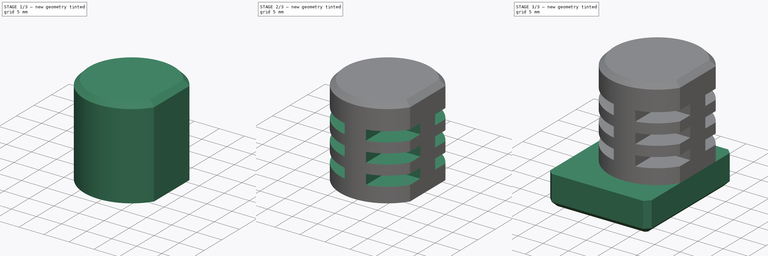
[diagram: build sequence overview — one tinted view per stage of 3, left to right]
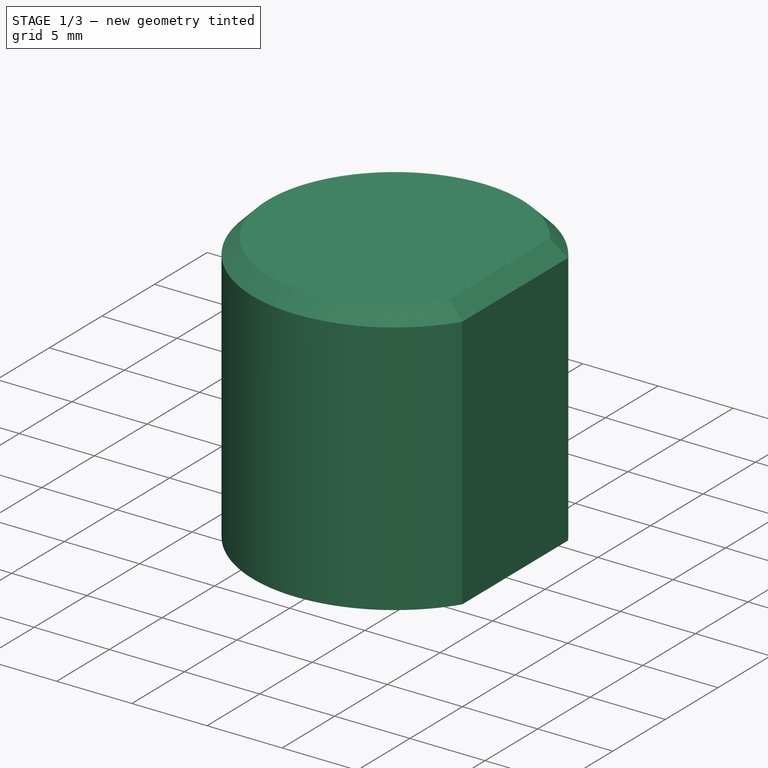
[diagram: stage 1 of 3 — iso view after this stage's code; geometry added in this stage tinted green]
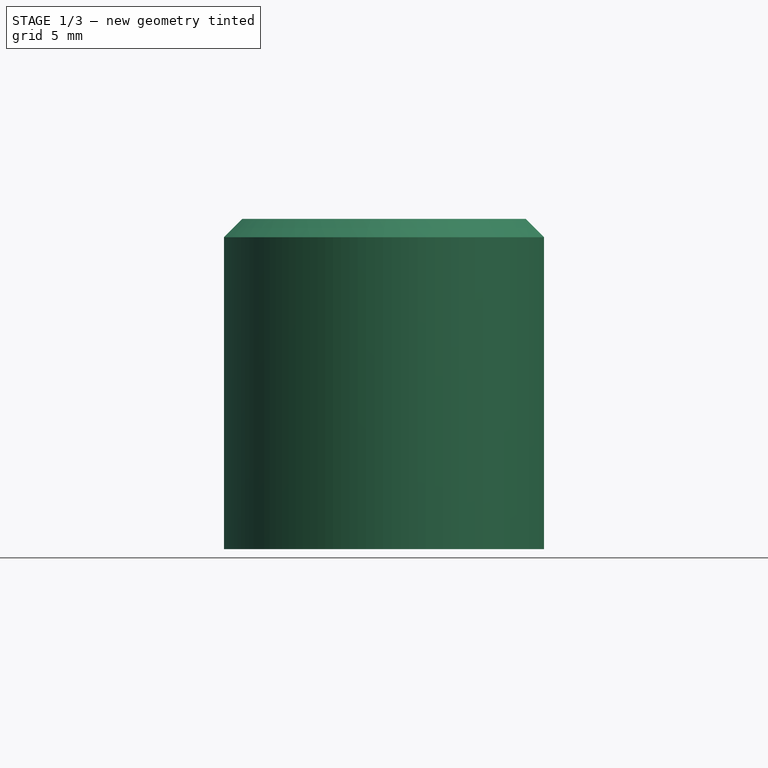
[diagram: stage 1 of 3 — front view after this stage's code; geometry added in this stage tinted green]
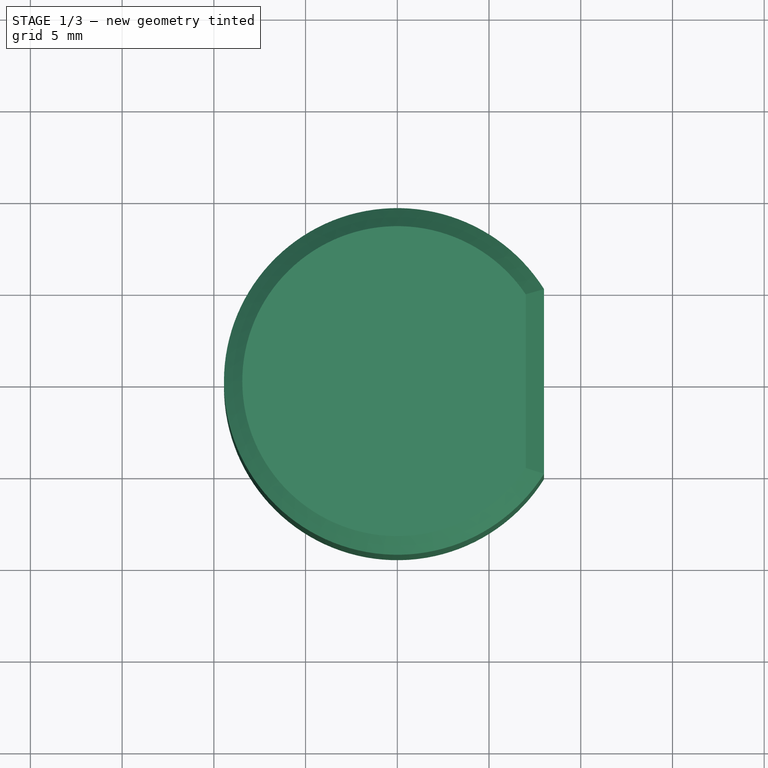
[diagram: stage 1 of 3 — top view after this stage's code; geometry added in this stage tinted green]
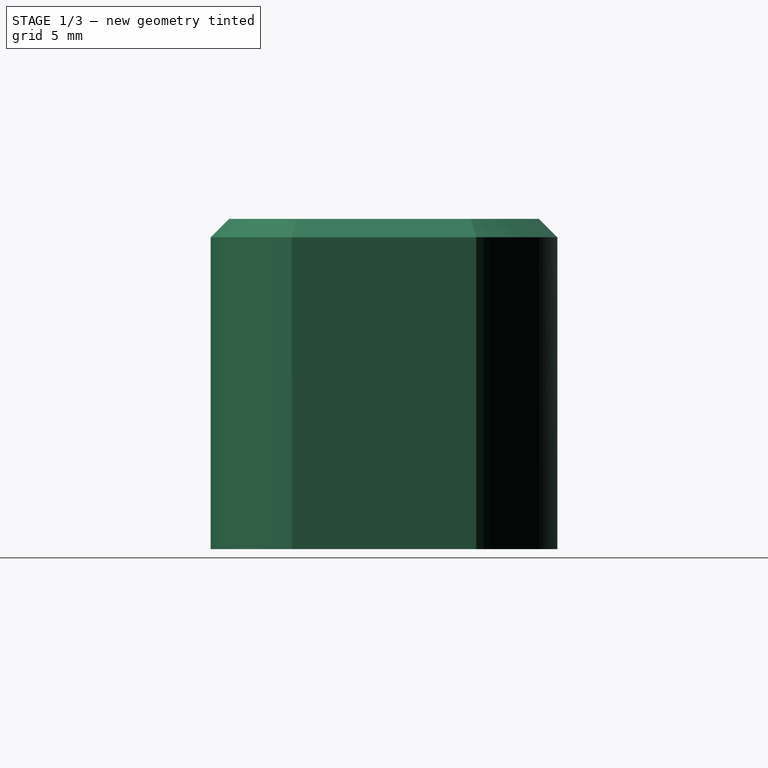
[diagram: stage 1 of 3 — right view after this stage's code; geometry added in this stage tinted green]
FCSTD DOCUMENT  (FreeCAD 1.1R38843 (Git))
Label: another dog
License: All rights reserved
LicenseURL: http://en.wikipedia.org/wiki/All_rights_reserved
objects: Sketcher::SketchObject×3, PartDesign::Pad×2, PartDesign::Chamfer×2, App::FeaturePython×1, PartDesign::Pocket×1, PartDesign::LinearPattern×1, PartDesign::Body×1
note: 24 computed .brp shape members not serialized (recipe doc carries the construction recipe); baked Part::Feature solids carry a one-line shape summary decoded from their .brp

FEATURE [Sketcher::SketchObject] Sketch003
  ArcFitTolerance = 0
  AttachmentSupport = -> [XY_Plane001]
  FullyConstrained = true
  MakeInternals = false
  MapMode = 5
  expr: Constraints[1] = dd.DogDiameter
  expr: Constraints[5] = dd.DogFlatDistance
  sketch-geometry (2):
    g0: ArcOfCircle CenterX=0 CenterY=0 CenterZ=0 NormalX=0 NormalY=0 NormalZ=1 AngleXU=0 Radius=9.45 StartAngle=0.561306 EndAngle=5.72188
    g1: LineSegment StartX=8 StartY=5.03016 StartZ=0 EndX=8 EndY=-5.03016 EndZ=0
  constraints (6):
    c: Coincident(g0,g-1)
    c: Diameter(g0) = 18.9
    c: Vertical(g1)
    c: Coincident(g0,g1)
    c: Coincident(g0,g1)
    c: DistanceX(g0,g0) = 8
FEATURE [PartDesign::Pad] Pad002  label="basic plug"
  Direction = (0,0,1)
  Length = 18
  Length2 = 10
  Profile = -> Sketch003
  ReferenceAxis = -> Sketch003 [N_Axis]
  Refine = true
  Suppressed = false
  Type = 0
  expr: Length = dd.DogDepth
FEATURE [App::FeaturePython] dd  label="Customization"  # WARN: FeaturePython — macro-defined, semantics opaque (R4)
  DogDepth = 18
  DogDiameter = 18.9
  DogFlatDistance = 8
  DogHeight = 6
  DogSideA = 10
  DogSideB = 12
  DogSideC = 14
  DynamicData = Created with DynamicData (v2.68) workbench. | This is a simple container object built | for holding custom properties.
FEATURE [Sketcher::SketchObject] Sketch004
  ArcFitTolerance = 1e-06
  AttachmentOffset = pos=(0,0,3) rot=(0,0,1;0rad)
  AttachmentSupport = -> [XY_Plane001]
  FullyConstrained = true
  MakeInternals = false
  MapMode = 5
  Placement = pos=(0,0,3) rot=(0,0,1;0rad)
  sketch-geometry (20):
    g0: LineSegment [constr] StartX=-2.12132 StartY=2.12132 StartZ=0 EndX=-2.12132 EndY=-2.12132 EndZ=0
    g1: LineSegment [constr] StartX=-2.12132 StartY=-2.12132 StartZ=0 EndX=2.12132 EndY=-2.12132 EndZ=0
    g2: LineSegment [constr] StartX=2.12132 StartY=-2.12132 StartZ=0 EndX=2.12132 EndY=2.12132 EndZ=0
    g3: LineSegment [constr] StartX=2.12132 StartY=2.12132 StartZ=0 EndX=-2.12132 EndY=2.12132 EndZ=0
    g4: LineSegment StartX=2.12132 StartY=-2.12132 StartZ=0 EndX=2.12132 EndY=-22.1213 EndZ=0
    g5: LineSegment StartX=2.12132 StartY=-22.1213 StartZ=0 EndX=22.1213 EndY=-22.1213 EndZ=0
    g6: LineSegment StartX=22.1213 StartY=-22.1213 StartZ=0 EndX=22.1213 EndY=-2.12132 EndZ=0
    g7: LineSegment StartX=22.1213 StartY=-2.12132 StartZ=0 EndX=2.12132 EndY=-2.12132 EndZ=0
    g8: LineSegment StartX=2.12132 StartY=2.12132 StartZ=0 EndX=22.1213 EndY=2.12132 EndZ=0
    g9: LineSegment StartX=22.1213 StartY=2.12132 StartZ=0 EndX=22.1213 EndY=22.1213 EndZ=0
    g10: LineSegment StartX=22.1213 StartY=22.1213 StartZ=0 EndX=2.12132 EndY=22.1213 EndZ=0
    g11: LineSegment StartX=2.12132 StartY=22.1213 StartZ=0 EndX=2.12132 EndY=2.12132 EndZ=0
    g12: LineSegment StartX=-2.12132 StartY=2.12132 StartZ=0 EndX=-2.12132 EndY=22.1213 EndZ=0
    g13: LineSegment StartX=-2.12132 StartY=22.1213 StartZ=0 EndX=-22.1213 EndY=22.1213 EndZ=0
    g14: LineSegment StartX=-22.1213 StartY=22.1213 StartZ=0 EndX=-22.1213 EndY=2.12132 EndZ=0
    g15: LineSegment StartX=-22.1213 StartY=2.12132 StartZ=0 EndX=-2.12132 EndY=2.12132 EndZ=0
    g16: LineSegment StartX=-2.12132 StartY=-2.12132 StartZ=0 EndX=-22.1213 EndY=-2.12132 EndZ=0
    g17: LineSegment StartX=-22.1213 StartY=-2.12132 StartZ=0 EndX=-22.1213 EndY=-22.1213 EndZ=0
    g18: LineSegment StartX=-22.1213 StartY=-22.1213 StartZ=0 EndX=-2.12132 EndY=-22.1213 EndZ=0
    g19: LineSegment StartX=-2.12132 StartY=-22.1213 StartZ=0 EndX=-2.12132 EndY=-2.12132 EndZ=0
  constraints (55):
    c: Coincident(g0,g1)
    c: Coincident(g1,g2)
    c: Coincident(g2,g3)
    c: Coincident(g3,g0)
    c: Vertical(g0)
    c: Vertical(g2)
    c: Horizontal(g1)
    c: Horizontal(g3)
    c: Equal(g1,g2)
    c: Symmetric(g0,g2,g-1)
    c: Coincident(g4,g5)
    c: Coincident(g5,g6)
    c: Coincident(g6,g7)
    c: Coincident(g7,g4)
    c: Vertical(g4)
    c: Vertical(g6)
    c: Horizontal(g5)
    c: Horizontal(g7)
    c: Coincident(g4,g1)
    c: Coincident(g8,g9)
    c: Coincident(g9,g10)
    c: Coincident(g10,g11)
    c: Coincident(g11,g8)
    c: Horizontal(g8)
    c: Horizontal(g10)
    c: Vertical(g9)
    c: Vertical(g11)
    c: Coincident(g8,g2)
    c: Coincident(g12,g13)
    c: Coincident(g13,g14)
    c: Coincident(g14,g15)
    c: Coincident(g15,g12)
    c: Vertical(g12)
    c: Vertical(g14)
    c: Horizontal(g13)
    c: Horizontal(g15)
    c: Coincident(g12,g0)
    c: Coincident(g16,g17)
    c: Coincident(g17,g18)
    c: Coincident(g18,g19)
    c: Coincident(g19,g16)
    c: Horizontal(g16)
    c: Horizontal(g18)
    c: Vertical(g17)
    c: Vertical(g19)
    c: Coincident(g16,g0)
    c: Equal(g10,g9)
    c: Equal(g12,g13)
    c: Equal(g16,g19)
    c: Equal(g4,g7)
    c: Equal(g7,g8)
    c: Equal(g8,g15)
    c: Equal(g16,g15)
    c: Distance(g-1,g1) = 3
    c: DistanceX(g7,g7) = 20
FEATURE [PartDesign::Chamfer] Chamfer001
  Angle = 45
  Base = -> Pad002 [Face4]
  BaseFeature = -> Pad002
  ChamferType = 0
  FlipDirection = false
  Refine = true
  Size = 1
  Size2 = 1
  SupportTransform = false
  Suppressed = false
  UseAllEdges = false
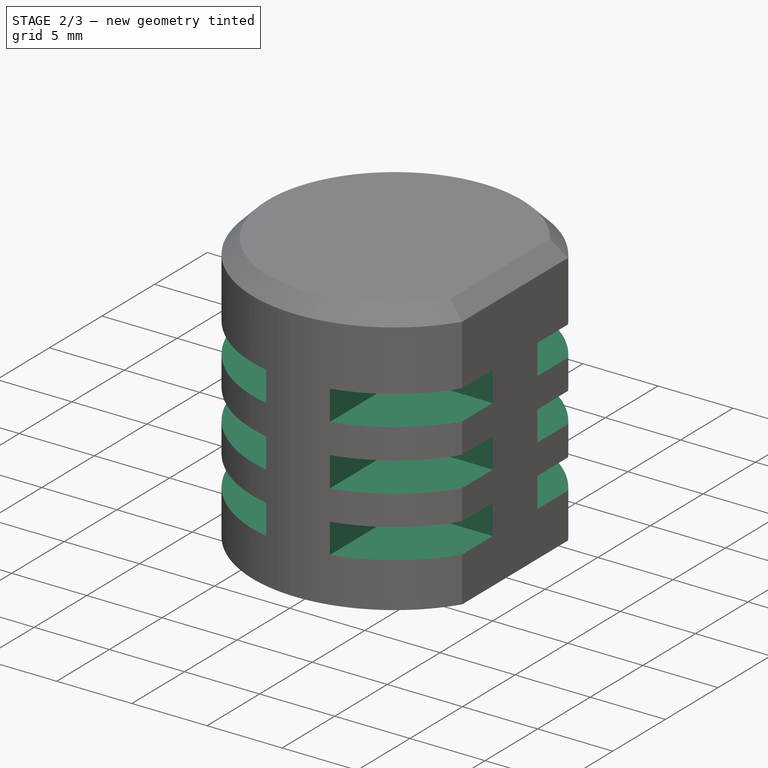
[diagram: stage 2 of 3 — iso view after this stage's code; geometry added in this stage tinted green]
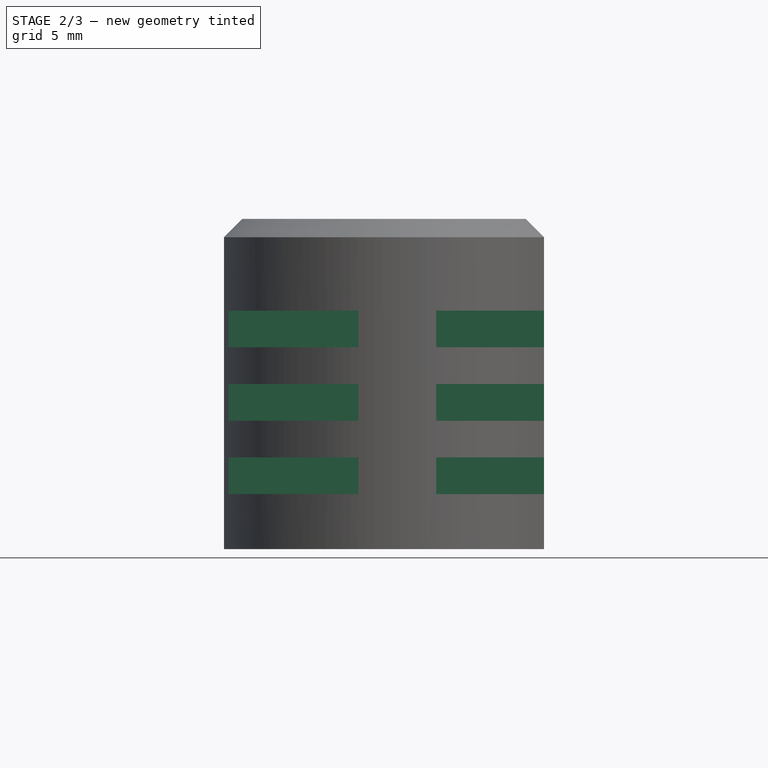
[diagram: stage 2 of 3 — front view after this stage's code; geometry added in this stage tinted green]
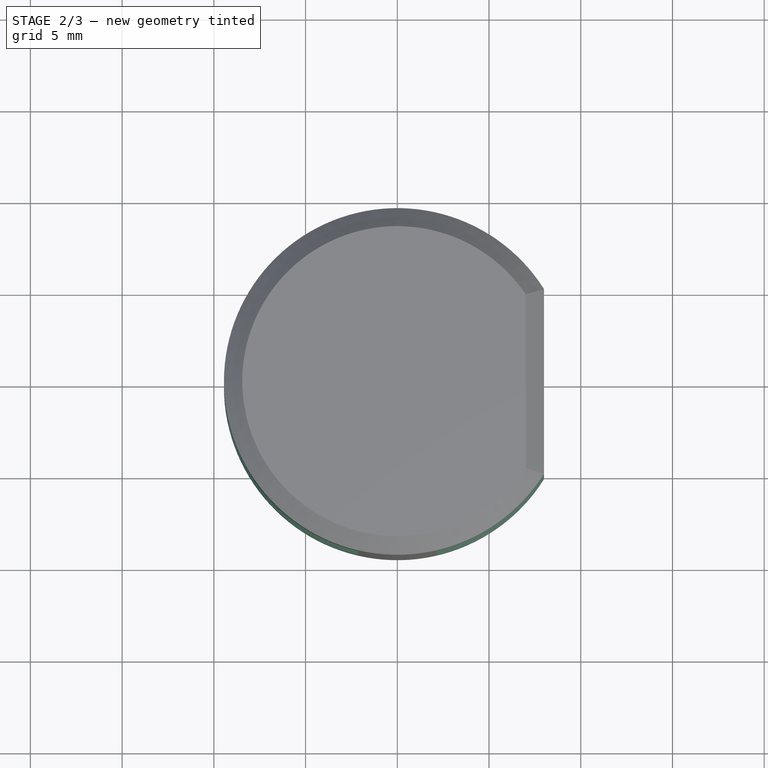
[diagram: stage 2 of 3 — top view after this stage's code; geometry added in this stage tinted green]
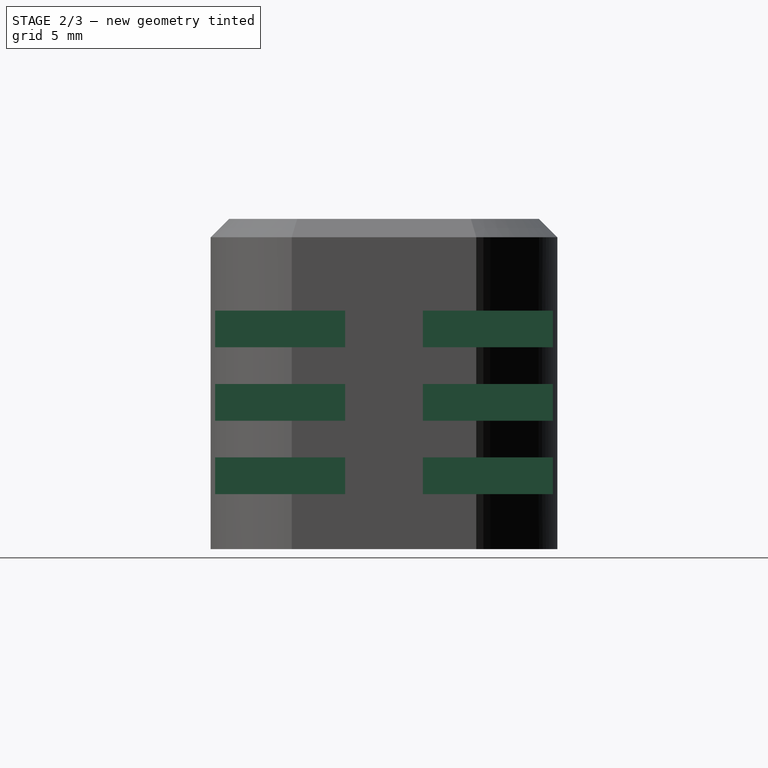
[diagram: stage 2 of 3 — right view after this stage's code; geometry added in this stage tinted green]
FEATURE [PartDesign::Pocket] Pocket001
  BaseFeature = -> Chamfer001
  Direction = (0,0,-1)
  Length = 2
  Length2 = 5
  Profile = -> Sketch004
  ReferenceAxis = -> Sketch004 [N_Axis]
  Refine = true
  Reversed = true
  Suppressed = false
  Type = 0
FEATURE [PartDesign::LinearPattern] LinearPattern001
  BaseFeature = -> Pocket001
  Direction = -> Z_Axis001
  Length = 8
  Mode = 1
  Occurrences = 3
  Offset = 4
  Originals = -> [Pocket001]
  Refine = true
  Suppressed = false
  TransformMode = 0
  expr: Occurrences = floor((dd.DogDepth - 4 mm) / 4)
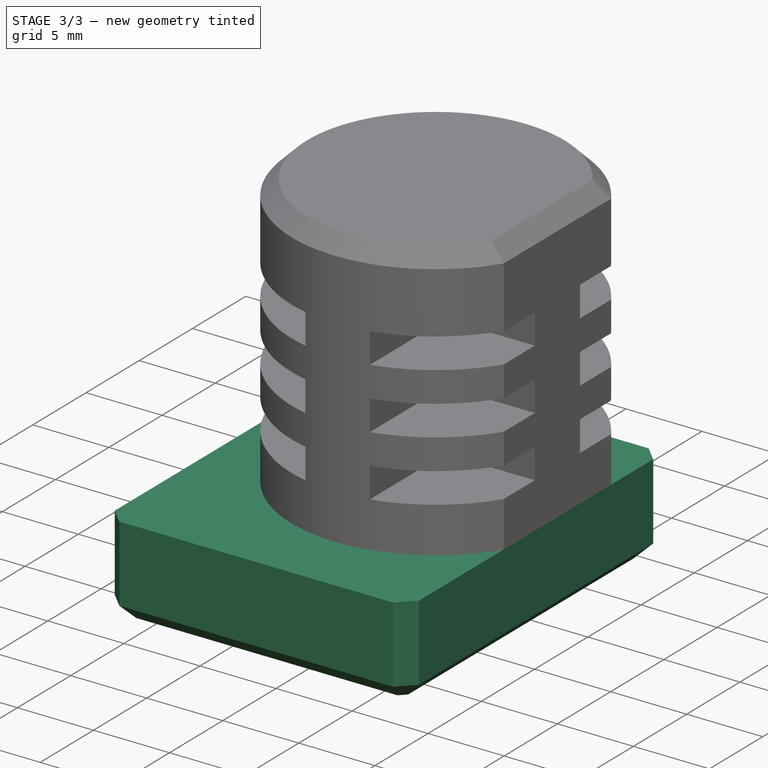
[diagram: stage 3 of 3 — iso view after this stage's code; geometry added in this stage tinted green]
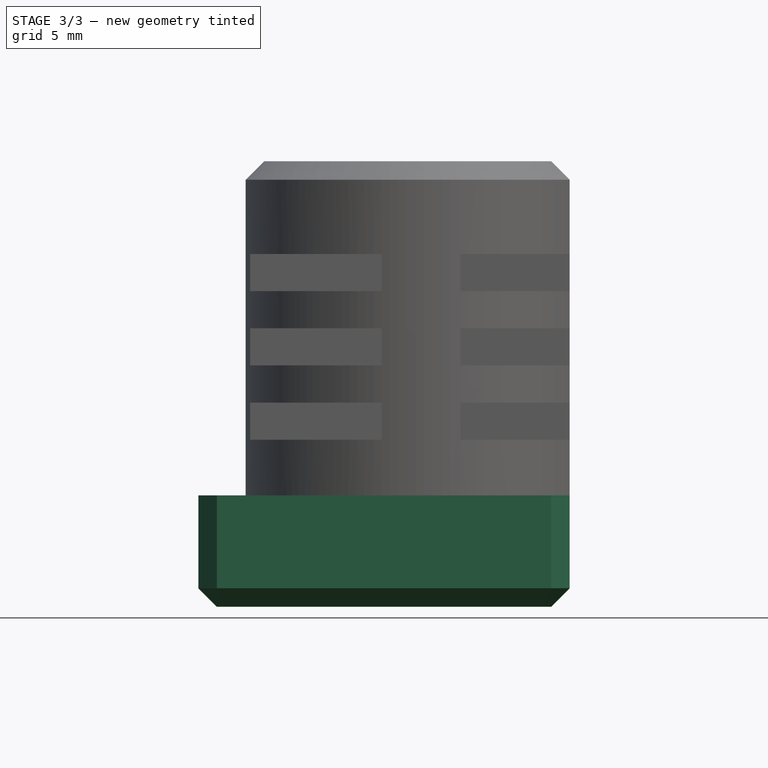
[diagram: stage 3 of 3 — front view after this stage's code; geometry added in this stage tinted green]
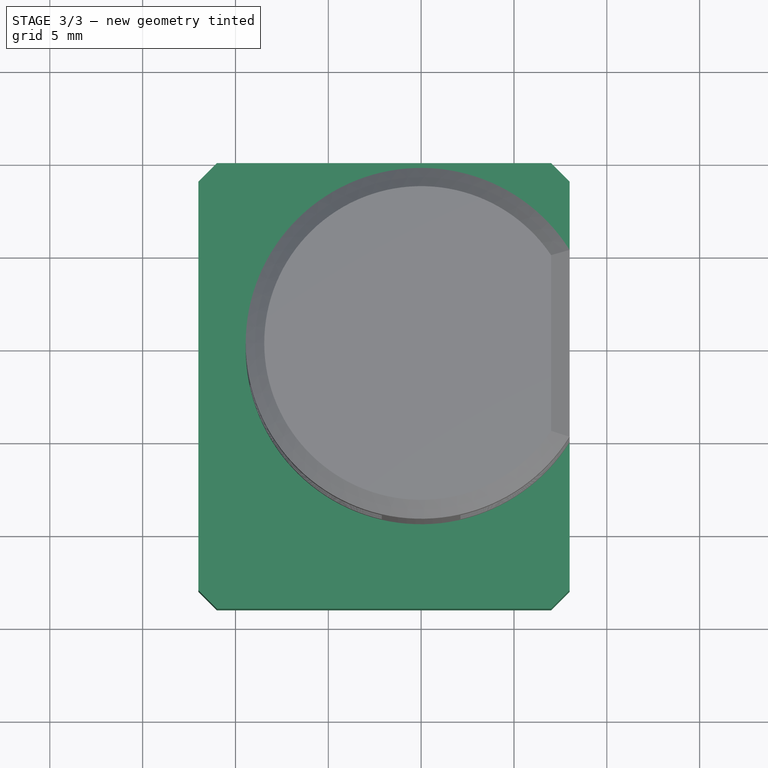
[diagram: stage 3 of 3 — top view after this stage's code; geometry added in this stage tinted green]
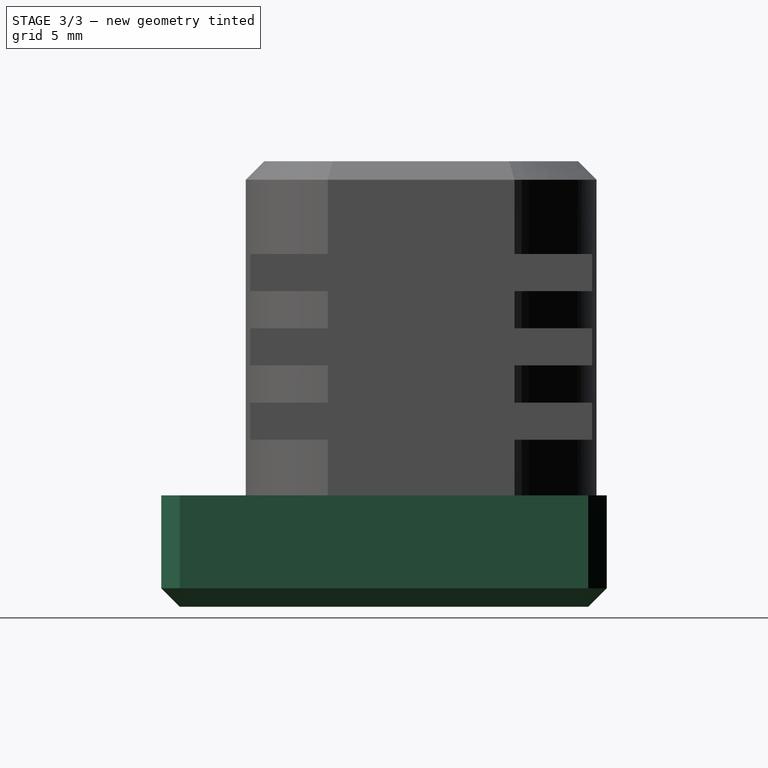
[diagram: stage 3 of 3 — right view after this stage's code; geometry added in this stage tinted green]
FEATURE [Sketcher::SketchObject] Sketch005
  ArcFitTolerance = 1e-06
  AttachmentSupport = -> [XY_Plane001]
  FullyConstrained = true
  MakeInternals = false
  MapMode = 5
  expr: Constraints[4] = dd.DogFlatDistance
  expr: Constraints[5] = dd.DogSideA
  expr: Constraints[6] = dd.DogSideB
  expr: Constraints[7] = dd.DogSideC
  sketch-geometry (16):
    g0: LineSegment StartX=-12 StartY=9 StartZ=0 EndX=-12 EndY=-13 EndZ=0
    g1: LineSegment StartX=-11 StartY=-14 StartZ=0 EndX=7 EndY=-14 EndZ=0
    g2: LineSegment StartX=8 StartY=-13 StartZ=0 EndX=8 EndY=9 EndZ=0
    g3: LineSegment StartX=7 StartY=10 StartZ=0 EndX=-11 EndY=10 EndZ=0
    g4: ArcOfCircle [constr] CenterX=7 CenterY=9 CenterZ=0 NormalX=0 NormalY=0 NormalZ=1 AngleXU=0 Radius=1 StartAngle=5e-16 EndAngle=1.5708
    g5: GeomPoint [constr] X=8 Y=10 Z=0
    g6: ArcOfCircle [constr] CenterX=-11 CenterY=9 CenterZ=0 NormalX=0 NormalY=0 NormalZ=1 AngleXU=0 Radius=1 StartAngle=1.5708 EndAngle=3.14159
    g7: GeomPoint [constr] X=-12 Y=10 Z=0
    g8: ArcOfCircle [constr] CenterX=-11 CenterY=-13 CenterZ=0 NormalX=0 NormalY=0 NormalZ=1 AngleXU=0 Radius=1 StartAngle=3.14159 EndAngle=4.71239
    g9: GeomPoint [constr] X=-12 Y=-14 Z=0
    g10: ArcOfCircle [constr] CenterX=7 CenterY=-13 CenterZ=0 NormalX=0 NormalY=0 NormalZ=1 AngleXU=0 Radius=1 StartAngle=4.71239 EndAngle=6.28319
    g11: GeomPoint [constr] X=8 Y=-14 Z=0
    g12: LineSegment StartX=7 StartY=10 StartZ=0 EndX=8 EndY=9 EndZ=0
    g13: LineSegment StartX=-12 StartY=9 StartZ=0 EndX=-11 EndY=10 EndZ=0
    g14: LineSegment StartX=-12 StartY=-13 StartZ=0 EndX=-11 EndY=-14 EndZ=0
    g15: LineSegment StartX=7 StartY=-14 StartZ=0 EndX=8 EndY=-13 EndZ=0
  constraints (36):
    c: Vertical(g0)
    c: Vertical(g2)
    c: Horizontal(g1)
    c: Horizontal(g3)
    c: DistanceX(g-1,g11) = 8
    c: DistanceY(g-1,g5) = 10
    c: DistanceX(g7,g-1) = 12
    c: DistanceY(g11,g-1) = 14
    c: PointOnObject(g5,g3)
    c: PointOnObject(g5,g2)
    c: Tangent(g3,g4) = -1.5708
    c: Tangent(g2,g4) = -1.5708
    c: PointOnObject(g7,g3)
    c: PointOnObject(g7,g0)
    c: Tangent(g3,g6) = -1.5708
    c: Tangent(g0,g6) = -1.5708
    c: PointOnObject(g9,g0)
    c: PointOnObject(g9,g1)
    c: Tangent(g0,g8) = -1.5708
    c: Tangent(g1,g8) = -1.5708
    c: PointOnObject(g11,g1)
    c: PointOnObject(g11,g2)
    c: Tangent(g1,g10) = -1.5708
    c: Tangent(g2,g10) = -1.5708
    c: Equal(g4,g6)
    c: Equal(g4,g8)
    c: Equal(g4,g10)
    c: Radius(g4) = 1
    c: Coincident(g12,g3)
    c: Coincident(g12,g2)
    c: Coincident(g13,g0)
    c: Coincident(g13,g3)
    c: Coincident(g14,g0)
    c: Coincident(g14,g1)
    c: Coincident(g15,g1)
    c: Coincident(g15,g2)
FEATURE [PartDesign::Pad] Pad003
  BaseFeature = -> LinearPattern001
  Direction = (0,0,1)
  Length = 6
  Length2 = 10
  Profile = -> Sketch005
  ReferenceAxis = -> Sketch005 [N_Axis]
  Refine = true
  Reversed = true
  Suppressed = false
  Type = 0
  expr: Length = dd.DogHeight
FEATURE [PartDesign::Chamfer] Chamfer002
  Angle = 45
  Base = -> Pad003 [Face5]
  BaseFeature = -> Pad003
  ChamferType = 0
  FlipDirection = false
  Refine = true
  Size = 1
  Size2 = 1
  SupportTransform = false
  Suppressed = false
  UseAllEdges = false
FEATURE [PartDesign::Body] Body001  label="bench dog"
  AllowCompound = false
  Base_Depth = 3
  Group = -> [Sketch003,Pad002,Sketch004,Chamfer001,Pocket001,LinearPattern001,Sketch005,Pad003,Chamfer002]
  Origin = -> Origin001
  Tip = -> Chamfer002
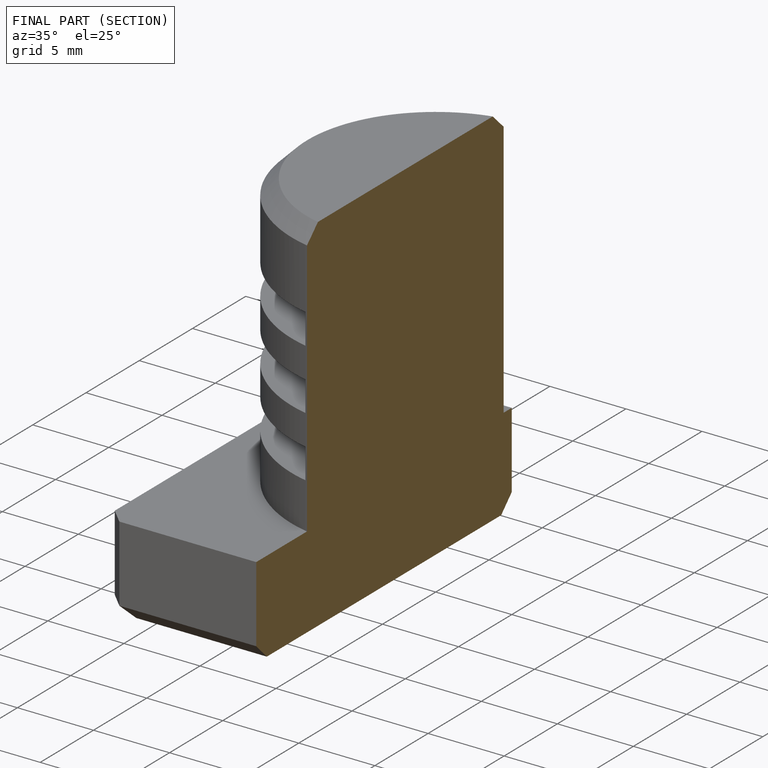
[diagram: finished part — half-section view (interior)]
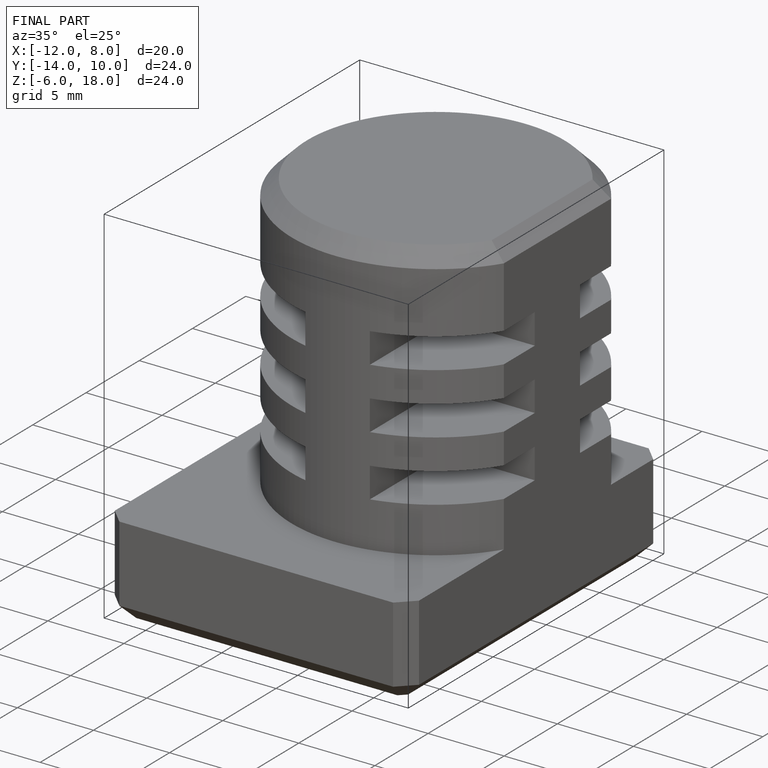
[diagram: finished part — iso view with bounding-box wireframe]
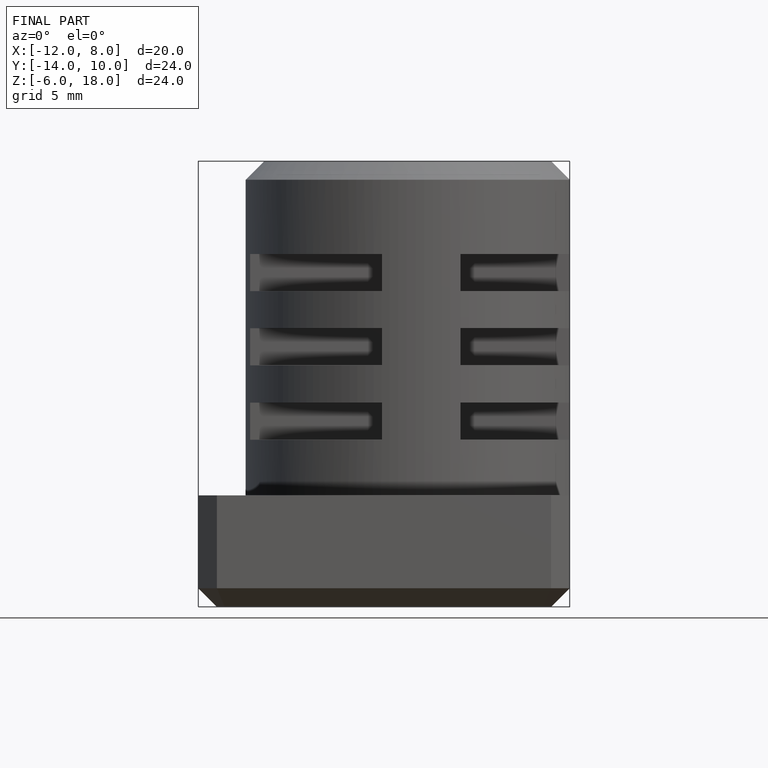
[diagram: finished part — front view with bounding-box wireframe]
